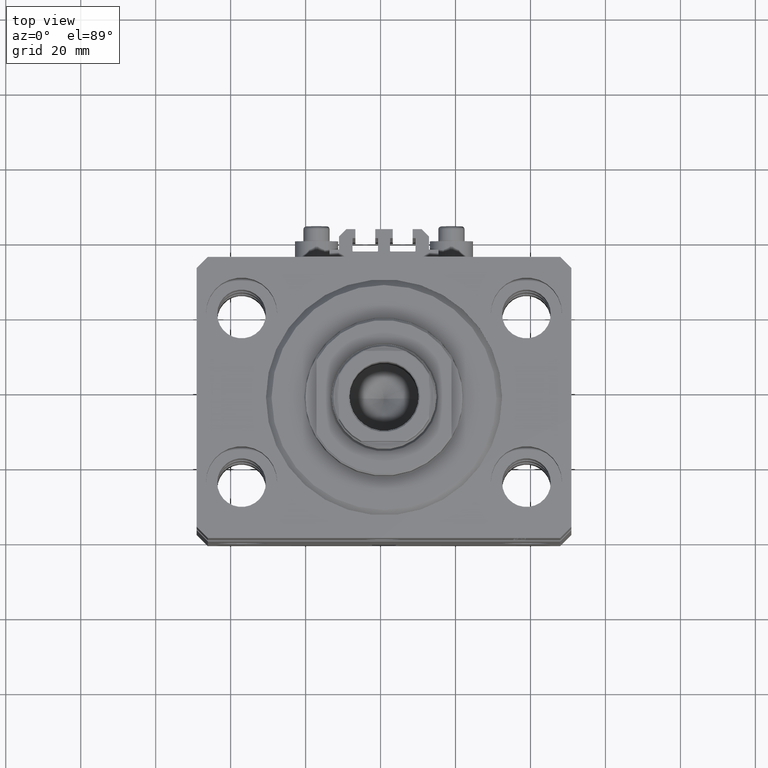
[diagram: clean part render]
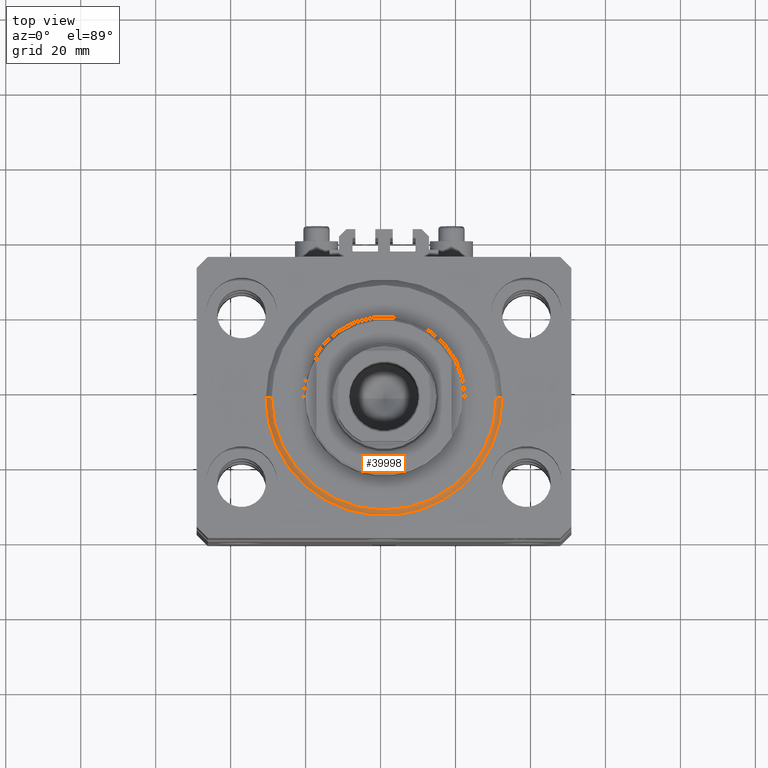
[diagram: same view with one face highlighted and labeled with its STEP entity id]
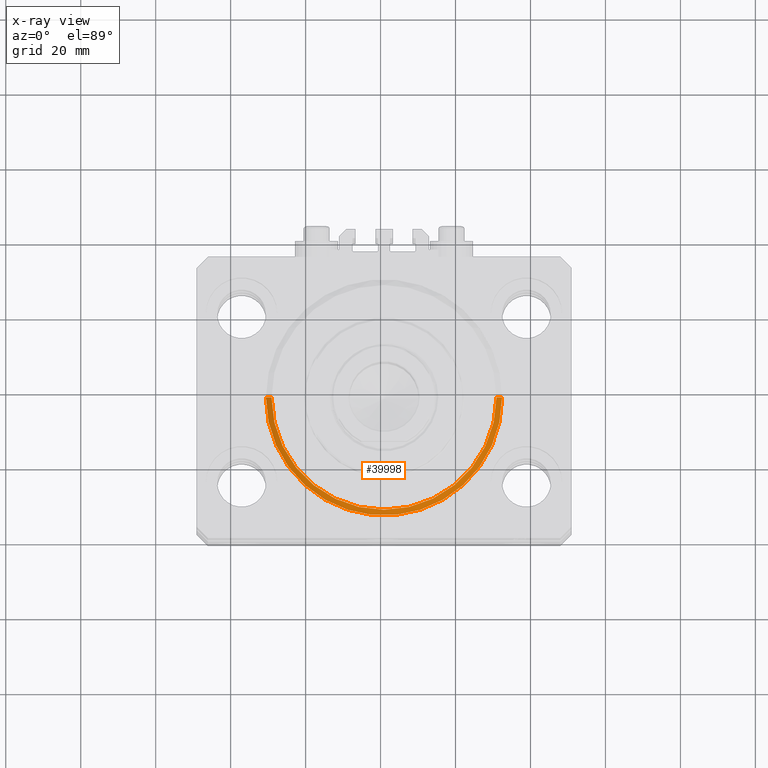
[diagram: x-ray of the same camera — body ghosted, the highlighted face saturated]
A machine part, top view. The second image highlights one B-rep face of the part: STEP entity #39998.
The next image is the same camera in x-ray: the body ghosted, the highlighted face saturated — about 0% of this face is hidden behind the body in this view.
In plain terms, the highlighted conical surface has half-angle 45 deg.
Its self-contained STEP definition (entity closure, byte-faithful):
#113 = CARTESIAN_POINT ( 'NONE',  ( 29.99999999999999289, 0.000000000000000000, 0.000000000000000000 ) ) ;
#1069 = DIRECTION ( 'NONE',  ( -0.000000000000000000, -0.000000000000000000, 1.000000000000000000 ) ) ;
#3084 = FACE_OUTER_BOUND ( 'NONE', #22283, .T. ) ;
#3444 = LINE ( 'NONE', #14623, #19210 ) ;
#5749 = ORIENTED_EDGE ( 'NONE', *, *, #28151, .T. ) ;
#6891 = DIRECTION ( 'NONE',  ( 1.000000000000000000, 0.000000000000000000, 0.000000000000000000 ) ) ;
#6957 = CARTESIAN_POINT ( 'NONE',  ( 0.000000000000000000, 0.000000000000000000, 1.500000000000001332 ) ) ;
#7066 = DIRECTION ( 'NONE',  ( -0.7071067811865491270, 8.659560562354952580E-17, 0.7071067811865459074 ) ) ;
#7837 = ORIENTED_EDGE ( 'NONE', *, *, #26319, .F. ) ;
#10200 = CONICAL_SURFACE ( 'NONE', #38974, 31.50000000000000000, 0.7853981633974506105 ) ;
#10335 = CARTESIAN_POINT ( 'NONE',  ( 31.50000000000000000, 3.857637417314162689E-15, 1.500000000000001332 ) ) ;
#11009 = EDGE_CURVE ( 'NONE', #43680, #21176, #42822, .T. ) ;
#11859 = ORIENTED_EDGE ( 'NONE', *, *, #11009, .F. ) ;
#14027 = CARTESIAN_POINT ( 'NONE',  ( -29.99999999999999289, 3.765788907378110539E-15, 0.000000000000000000 ) ) ;
#14623 = CARTESIAN_POINT ( 'NONE',  ( -31.50000000000000000, 3.857637417314162689E-15, 1.500000000000001332 ) ) ;
#15927 = DIRECTION ( 'NONE',  ( 1.000000000000000000, 0.000000000000000000, 0.000000000000000000 ) ) ;
#19210 = VECTOR ( 'NONE', #7066, 1000.000000000000000 ) ;
#21176 = VERTEX_POINT ( 'NONE', #10335 ) ;
#21836 = AXIS2_PLACEMENT_3D ( 'NONE', #33952, #1069, #15927 ) ;
#22283 = EDGE_LOOP ( 'NONE', ( #7837, #26906, #5749, #11859 ) ) ;
#24110 = LINE ( 'NONE', #28482, #44133 ) ;
#24821 = CIRCLE ( 'NONE', #34928, 29.99999999999999289 ) ;
#25105 = VERTEX_POINT ( 'NONE', #113 ) ;
#26319 = EDGE_CURVE ( 'NONE', #27688, #43680, #3444, .T. ) ;
#26906 = ORIENTED_EDGE ( 'NONE', *, *, #34799, .F. ) ;
#27688 = VERTEX_POINT ( 'NONE', #14027 ) ;
#28151 = EDGE_CURVE ( 'NONE', #25105, #21176, #24110, .T. ) ;
#28241 = DIRECTION ( 'NONE',  ( 0.7071067811865491270, 0.000000000000000000, 0.7071067811865459074 ) ) ;
#28482 = CARTESIAN_POINT ( 'NONE',  ( 31.50000000000000000, 0.000000000000000000, 1.500000000000001332 ) ) ;
#29081 = DIRECTION ( 'NONE',  ( -0.000000000000000000, -0.000000000000000000, -1.000000000000000000 ) ) ;
#29870 = DIRECTION ( 'NONE',  ( -0.000000000000000000, -0.000000000000000000, 1.000000000000000000 ) ) ;
#32733 = CARTESIAN_POINT ( 'NONE',  ( 0.000000000000000000, 0.000000000000000000, 0.000000000000000000 ) ) ;
#33514 = DIRECTION ( 'NONE',  ( 1.000000000000000000, 0.000000000000000000, 0.000000000000000000 ) ) ;
#33952 = CARTESIAN_POINT ( 'NONE',  ( 0.000000000000000000, 0.000000000000000000, 1.500000000000001332 ) ) ;
#34799 = EDGE_CURVE ( 'NONE', #25105, #27688, #24821, .T. ) ;
#34928 = AXIS2_PLACEMENT_3D ( 'NONE', #32733, #29081, #6891 ) ;
#35447 = CARTESIAN_POINT ( 'NONE',  ( -31.50000000000000000, 0.000000000000000000, 1.500000000000001332 ) ) ;
#38974 = AXIS2_PLACEMENT_3D ( 'NONE', #6957, #29870, #33514 ) ;
#39998 = ADVANCED_FACE ( 'NONE', ( #3084 ), #10200, .T. ) ;
#42822 = CIRCLE ( 'NONE', #21836, 31.50000000000000000 ) ;
#43680 = VERTEX_POINT ( 'NONE', #35447 ) ;
#44133 = VECTOR ( 'NONE', #28241, 1000.000000000000000 ) ;